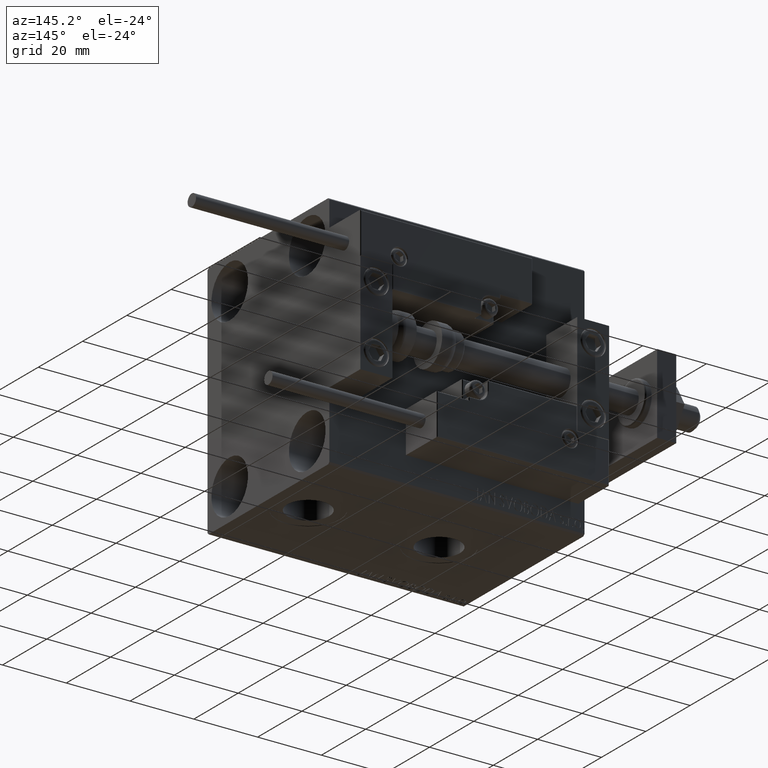
[diagram: clean part render]
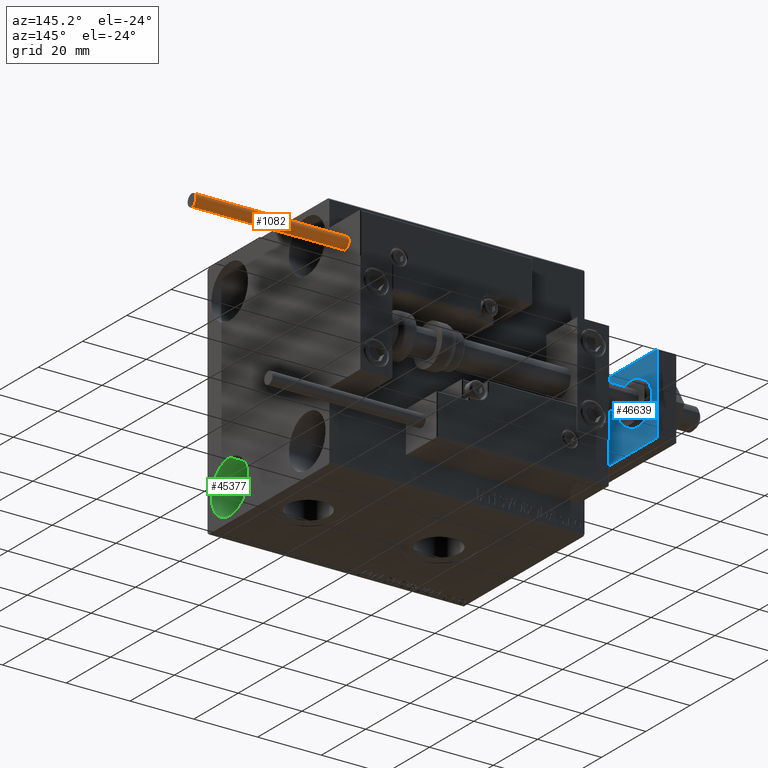
[diagram: same view with three faces highlighted in distinct colors, each labeled with its STEP entity id]
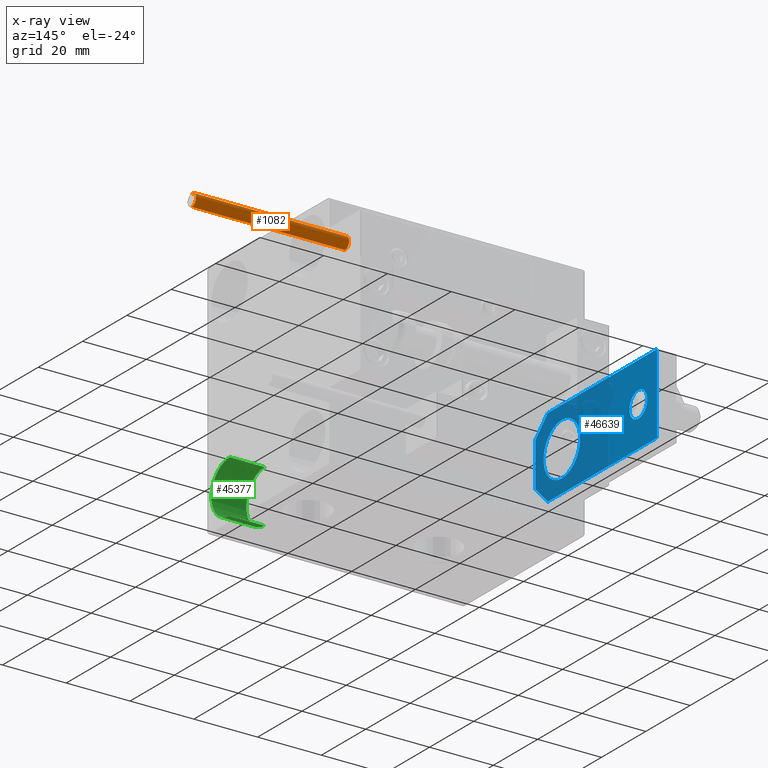
[diagram: x-ray of the same camera — body ghosted, the three highlighted faces saturated]
A machine part, auxiliary view with three faces highlighted in distinct colors.
The next image is the same camera in x-ray (body ghosted, the three faces saturated) — at least one of them is partly hidden behind the body in this view.
Their STEP definitions:

[orange] entity #1082 — the highlighted cylindrical surface (edge-blend (fillet) strip) has radius 1.9 mm, axis along (-1, -0, 0).
#40 = DIRECTION ( 'NONE',  ( -0.000000000000000000, -0.000000000000000000, -1.000000000000000000 ) ) ;
#540 = CYLINDRICAL_SURFACE ( 'NONE', #27054, 1.899999999999999467 ) ;
#699 = CARTESIAN_POINT ( 'NONE',  ( -1.899999999999999467, 0.000000000000000000, 0.000000000000000000 ) ) ;
#1082 = ADVANCED_FACE ( 'NONE', ( #11248 ), #540, .T. ) ;
#1273 = VECTOR ( 'NONE', #26378, 1000.000000000000000 ) ;
#1294 = AXIS2_PLACEMENT_3D ( 'NONE', #19311, #15729, #23638 ) ;
#2304 = ORIENTED_EDGE ( 'NONE', *, *, #8899, .T. ) ;
#2812 = DIRECTION ( 'NONE',  ( 1.000000000000000000, 0.000000000000000000, 0.000000000000000000 ) ) ;
#3156 = VERTEX_POINT ( 'NONE', #699 ) ;
#3565 = DIRECTION ( 'NONE',  ( 0.000000000000000000, 0.000000000000000000, 1.000000000000000000 ) ) ;
#3663 = CARTESIAN_POINT ( 'NONE',  ( 1.899999999999999467, 2.326828918379970872E-16, 48.00000000000000000 ) ) ;
#3806 = ORIENTED_EDGE ( 'NONE', *, *, #48277, .T. ) ;
#4733 = DIRECTION ( 'NONE',  ( -0.000000000000000000, -0.000000000000000000, -1.000000000000000000 ) ) ;
#6991 = CIRCLE ( 'NONE', #1294, 1.899999999999999467 ) ;
#8899 = EDGE_CURVE ( 'NONE', #31305, #33926, #13895, .T. ) ;
#11248 = FACE_OUTER_BOUND ( 'NONE', #18096, .T. ) ;
#13895 = LINE ( 'NONE', #22316, #1273 ) ;
#15015 = CARTESIAN_POINT ( 'NONE',  ( -1.899999999999999467, 0.000000000000000000, 48.00000000000000000 ) ) ;
#15729 = DIRECTION ( 'NONE',  ( 0.000000000000000000, 0.000000000000000000, 1.000000000000000000 ) ) ;
#16053 = EDGE_CURVE ( 'NONE', #31305, #38540, #43208, .T. ) ;
#16219 = CARTESIAN_POINT ( 'NONE',  ( -1.899999999999999467, 0.000000000000000000, 48.00000000000000000 ) ) ;
#18096 = EDGE_LOOP ( 'NONE', ( #36208, #2304, #3806, #39537 ) ) ;
#18890 = DIRECTION ( 'NONE',  ( -1.000000000000000000, 0.000000000000000000, 0.000000000000000000 ) ) ;
#19311 = CARTESIAN_POINT ( 'NONE',  ( 0.000000000000000000, 0.000000000000000000, 0.000000000000000000 ) ) ;
#20883 = VECTOR ( 'NONE', #4733, 1000.000000000000000 ) ;
#21261 = AXIS2_PLACEMENT_3D ( 'NONE', #37690, #3565, #2812 ) ;
#22316 = CARTESIAN_POINT ( 'NONE',  ( 1.899999999999999467, 2.326828918379970872E-16, 48.00000000000000000 ) ) ;
#23638 = DIRECTION ( 'NONE',  ( 1.000000000000000000, 0.000000000000000000, 0.000000000000000000 ) ) ;
#26378 = DIRECTION ( 'NONE',  ( -0.000000000000000000, -0.000000000000000000, -1.000000000000000000 ) ) ;
#26532 = CARTESIAN_POINT ( 'NONE',  ( 0.000000000000000000, 0.000000000000000000, 48.00000000000000000 ) ) ;
#27054 = AXIS2_PLACEMENT_3D ( 'NONE', #26532, #40, #18890 ) ;
#31305 = VERTEX_POINT ( 'NONE', #3663 ) ;
#33754 = EDGE_CURVE ( 'NONE', #38540, #3156, #39622, .T. ) ;
#33926 = VERTEX_POINT ( 'NONE', #37545 ) ;
#36208 = ORIENTED_EDGE ( 'NONE', *, *, #16053, .F. ) ;
#37545 = CARTESIAN_POINT ( 'NONE',  ( 1.899999999999999467, 2.326828918379970872E-16, 0.000000000000000000 ) ) ;
#37690 = CARTESIAN_POINT ( 'NONE',  ( 0.000000000000000000, 0.000000000000000000, 48.00000000000000000 ) ) ;
#38540 = VERTEX_POINT ( 'NONE', #15015 ) ;
#39537 = ORIENTED_EDGE ( 'NONE', *, *, #33754, .F. ) ;
#39622 = LINE ( 'NONE', #16219, #20883 ) ;
#43208 = CIRCLE ( 'NONE', #21261, 1.899999999999999467 ) ;
#48277 = EDGE_CURVE ( 'NONE', #33926, #3156, #6991, .T. ) ;

[blue] entity #46639 — the highlighted planar face has unit normal (-1, 0, 0).
#905 = DIRECTION ( 'NONE',  ( 0.000000000000000000, 0.000000000000000000, 1.000000000000000000 ) ) ;
#1201 = VERTEX_POINT ( 'NONE', #50179 ) ;
#1612 = LINE ( 'NONE', #17139, #42018 ) ;
#2144 = EDGE_CURVE ( 'NONE', #47420, #10981, #23870, .T. ) ;
#2354 = CARTESIAN_POINT ( 'NONE',  ( 12.50000000000000355, 5.659999999999991260, 0.000000000000000000 ) ) ;
#2991 = EDGE_CURVE ( 'NONE', #3270, #10981, #39150, .T. ) ;
#3270 = VERTEX_POINT ( 'NONE', #44952 ) ;
#3877 = CARTESIAN_POINT ( 'NONE',  ( -6.840000000000012292, 4.814824860968089633E-32, 0.000000000000000000 ) ) ;
#4507 = AXIS2_PLACEMENT_3D ( 'NONE', #20641, #44048, #29030 ) ;
#6232 = CARTESIAN_POINT ( 'NONE',  ( 8.250000000000000000, 11.99999999999999822, 0.000000000000000000 ) ) ;
#6318 = VERTEX_POINT ( 'NONE', #7425 ) ;
#7425 = CARTESIAN_POINT ( 'NONE',  ( 4.000000000000000888, 46.50000000000000000, 0.000000000000000000 ) ) ;
#7743 = CARTESIAN_POINT ( 'NONE',  ( 12.50000000000000000, 55.00000000000000000, 0.000000000000000000 ) ) ;
#8950 = ORIENTED_EDGE ( 'NONE', *, *, #11895, .T. ) ;
#10044 = VERTEX_POINT ( 'NONE', #26836 ) ;
#10151 = VECTOR ( 'NONE', #35297, 1000.000000000000000 ) ;
#10362 = AXIS2_PLACEMENT_3D ( 'NONE', #18101, #26003, #26243 ) ;
#10462 = EDGE_CURVE ( 'NONE', #1201, #43120, #22408, .T. ) ;
#10981 = VERTEX_POINT ( 'NONE', #16073 ) ;
#11144 = CARTESIAN_POINT ( 'NONE',  ( -12.49999999999999822, 55.00000000000000000, 0.000000000000000000 ) ) ;
#11178 = FACE_BOUND ( 'NONE', #40268, .T. ) ;
#11600 = DIRECTION ( 'NONE',  ( 1.000000000000000000, 0.000000000000000000, 0.000000000000000000 ) ) ;
#11679 = CARTESIAN_POINT ( 'NONE',  ( 0.000000000000000000, 0.000000000000000000, 0.000000000000000000 ) ) ;
#11895 = EDGE_CURVE ( 'NONE', #6318, #29539, #46813, .T. ) ;
#12926 = LINE ( 'NONE', #27971, #26505 ) ;
#12936 = EDGE_CURVE ( 'NONE', #42466, #10044, #12926, .T. ) ;
#13753 = EDGE_CURVE ( 'NONE', #29539, #6318, #15296, .T. ) ;
#14239 = AXIS2_PLACEMENT_3D ( 'NONE', #35781, #905, #16441 ) ;
#14879 = VECTOR ( 'NONE', #39635, 1000.000000000000000 ) ;
#15296 = CIRCLE ( 'NONE', #37239, 4.000000000000000888 ) ;
#16073 = CARTESIAN_POINT ( 'NONE',  ( -12.50000000000000355, 5.660000000000005471, 0.000000000000000000 ) ) ;
#16441 = DIRECTION ( 'NONE',  ( 1.000000000000000000, 0.000000000000000000, 0.000000000000000000 ) ) ;
#16545 = VECTOR ( 'NONE', #31258, 1000.000000000000000 ) ;
#16696 = CARTESIAN_POINT ( 'NONE',  ( -12.50000000000000355, 4.814824860968089633E-32, 0.000000000000000000 ) ) ;
#17139 = CARTESIAN_POINT ( 'NONE',  ( 12.50000000000000000, 55.00000000000000000, 0.000000000000000000 ) ) ;
#18101 = CARTESIAN_POINT ( 'NONE',  ( -9.629649721936179265E-32, 11.99999999999999645, 0.000000000000000000 ) ) ;
#18150 = ORIENTED_EDGE ( 'NONE', *, *, #46044, .F. ) ;
#19085 = FACE_OUTER_BOUND ( 'NONE', #36926, .T. ) ;
#20641 = CARTESIAN_POINT ( 'NONE',  ( -1.432611055310774642E-16, 46.50000000000000000, 0.000000000000000000 ) ) ;
#22394 = AXIS2_PLACEMENT_3D ( 'NONE', #11679, #46311, #45800 ) ;
#22408 = CIRCLE ( 'NONE', #14239, 8.250000000000000000 ) ;
#23870 = LINE ( 'NONE', #43450, #14879 ) ;
#24604 = VERTEX_POINT ( 'NONE', #7743 ) ;
#25293 = DIRECTION ( 'NONE',  ( -1.000000000000000000, 0.000000000000000000, 0.000000000000000000 ) ) ;
#25843 = ORIENTED_EDGE ( 'NONE', *, *, #2144, .T. ) ;
#26003 = DIRECTION ( 'NONE',  ( 0.000000000000000000, 0.000000000000000000, 1.000000000000000000 ) ) ;
#26111 = CARTESIAN_POINT ( 'NONE',  ( 12.50000000000000355, 4.814824860968089633E-32, 0.000000000000000000 ) ) ;
#26243 = DIRECTION ( 'NONE',  ( 1.000000000000000000, 0.000000000000000000, 0.000000000000000000 ) ) ;
#26505 = VECTOR ( 'NONE', #43500, 1000.000000000000114 ) ;
#26836 = CARTESIAN_POINT ( 'NONE',  ( 6.839999999999998970, 4.814824860968089633E-32, 0.000000000000000000 ) ) ;
#26918 = CARTESIAN_POINT ( 'NONE',  ( -4.000000000000000888, 46.50000000000000000, 0.000000000000000000 ) ) ;
#27971 = CARTESIAN_POINT ( 'NONE',  ( 12.50000000000000355, 5.659999999999991260, 0.000000000000000000 ) ) ;
#29030 = DIRECTION ( 'NONE',  ( 1.000000000000000000, 0.000000000000000000, 0.000000000000000000 ) ) ;
#29539 = VERTEX_POINT ( 'NONE', #26918 ) ;
#29807 = EDGE_CURVE ( 'NONE', #42466, #24604, #30180, .T. ) ;
#30180 = LINE ( 'NONE', #26111, #36158 ) ;
#30283 = FACE_BOUND ( 'NONE', #47972, .T. ) ;
#30928 = ORIENTED_EDGE ( 'NONE', *, *, #10462, .T. ) ;
#31258 = DIRECTION ( 'NONE',  ( -9.462128050782584375E-17, -1.000000000000000000, 0.000000000000000000 ) ) ;
#33267 = ORIENTED_EDGE ( 'NONE', *, *, #29807, .F. ) ;
#34202 = EDGE_CURVE ( 'NONE', #24604, #3270, #1612, .T. ) ;
#35297 = DIRECTION ( 'NONE',  ( 1.000000000000000000, 0.000000000000000000, 0.000000000000000000 ) ) ;
#35781 = CARTESIAN_POINT ( 'NONE',  ( -9.629649721936179265E-32, 11.99999999999999645, 0.000000000000000000 ) ) ;
#36158 = VECTOR ( 'NONE', #37806, 1000.000000000000000 ) ;
#36926 = EDGE_LOOP ( 'NONE', ( #18150, #25843, #38541, #37026, #33267, #39857 ) ) ;
#37026 = ORIENTED_EDGE ( 'NONE', *, *, #34202, .F. ) ;
#37239 = AXIS2_PLACEMENT_3D ( 'NONE', #38335, #38088, #11600 ) ;
#37806 = DIRECTION ( 'NONE',  ( -6.308085367188389994E-17, 1.000000000000000000, 0.000000000000000000 ) ) ;
#38088 = DIRECTION ( 'NONE',  ( 0.000000000000000000, 0.000000000000000000, 1.000000000000000000 ) ) ;
#38335 = CARTESIAN_POINT ( 'NONE',  ( -1.432611055310774642E-16, 46.50000000000000000, 0.000000000000000000 ) ) ;
#38541 = ORIENTED_EDGE ( 'NONE', *, *, #2991, .F. ) ;
#39150 = LINE ( 'NONE', #11144, #16545 ) ;
#39570 = EDGE_CURVE ( 'NONE', #43120, #1201, #41252, .T. ) ;
#39635 = DIRECTION ( 'NONE',  ( -0.7071067811865467956, 0.7071067811865483499, -0.000000000000000000 ) ) ;
#39857 = ORIENTED_EDGE ( 'NONE', *, *, #12936, .T. ) ;
#40268 = EDGE_LOOP ( 'NONE', ( #48915, #8950 ) ) ;
#40804 = ORIENTED_EDGE ( 'NONE', *, *, #39570, .T. ) ;
#41252 = CIRCLE ( 'NONE', #10362, 8.250000000000000000 ) ;
#42018 = VECTOR ( 'NONE', #25293, 1000.000000000000000 ) ;
#42466 = VERTEX_POINT ( 'NONE', #2354 ) ;
#42948 = LINE ( 'NONE', #16696, #10151 ) ;
#43120 = VERTEX_POINT ( 'NONE', #6232 ) ;
#43450 = CARTESIAN_POINT ( 'NONE',  ( -6.840000000000012292, 4.814824860968089633E-32, 0.000000000000000000 ) ) ;
#43500 = DIRECTION ( 'NONE',  ( -0.7071067811865483499, -0.7071067811865465735, -0.000000000000000000 ) ) ;
#44048 = DIRECTION ( 'NONE',  ( 0.000000000000000000, 0.000000000000000000, 1.000000000000000000 ) ) ;
#44952 = CARTESIAN_POINT ( 'NONE',  ( -12.49999999999999822, 55.00000000000000000, 0.000000000000000000 ) ) ;
#45800 = DIRECTION ( 'NONE',  ( 1.000000000000000000, 0.000000000000000000, 0.000000000000000000 ) ) ;
#46044 = EDGE_CURVE ( 'NONE', #47420, #10044, #42948, .T. ) ;
#46311 = DIRECTION ( 'NONE',  ( -0.000000000000000000, 0.000000000000000000, 1.000000000000000000 ) ) ;
#46556 = PLANE ( 'NONE',  #22394 ) ;
#46639 = ADVANCED_FACE ( 'NONE', ( #19085, #11178, #30283 ), #46556, .F. ) ;
#46813 = CIRCLE ( 'NONE', #4507, 4.000000000000000888 ) ;
#47420 = VERTEX_POINT ( 'NONE', #3877 ) ;
#47972 = EDGE_LOOP ( 'NONE', ( #30928, #40804 ) ) ;
#48915 = ORIENTED_EDGE ( 'NONE', *, *, #13753, .T. ) ;
#50179 = CARTESIAN_POINT ( 'NONE',  ( -8.250000000000000000, 11.99999999999999645, 0.000000000000000000 ) ) ;

[green] entity #45377 — the highlighted cylindrical surface (edge-blend (fillet) strip) has radius 8.25 mm, axis along (1, 0, 0).
#622 = EDGE_CURVE ( 'NONE', #26761, #2992, #45789, .T. ) ;
#2435 = CARTESIAN_POINT ( 'NONE',  ( 80.00000000000000000, -17.50000000000000355, -19.25000000000000355 ) ) ;
#2992 = VERTEX_POINT ( 'NONE', #23131 ) ;
#5316 = CARTESIAN_POINT ( 'NONE',  ( 69.00000000000000000, -17.50000000000000355, -35.75000000000000711 ) ) ;
#5883 = FACE_OUTER_BOUND ( 'NONE', #48022, .T. ) ;
#8447 = DIRECTION ( 'NONE',  ( 0.000000000000000000, 0.000000000000000000, 1.000000000000000000 ) ) ;
#10188 = EDGE_CURVE ( 'NONE', #26761, #24577, #19097, .T. ) ;
#10724 = DIRECTION ( 'NONE',  ( 0.000000000000000000, 0.000000000000000000, -1.000000000000000000 ) ) ;
#12583 = DIRECTION ( 'NONE',  ( -1.000000000000000000, -0.000000000000000000, -0.000000000000000000 ) ) ;
#14013 = ORIENTED_EDGE ( 'NONE', *, *, #41874, .T. ) ;
#16158 = VECTOR ( 'NONE', #18014, 1000.000000000000000 ) ;
#16452 = VECTOR ( 'NONE', #30273, 1000.000000000000000 ) ;
#17878 = CARTESIAN_POINT ( 'NONE',  ( 69.00000000000000000, -17.50000000000000355, -27.50000000000000355 ) ) ;
#18014 = DIRECTION ( 'NONE',  ( 1.000000000000000000, -0.000000000000000000, -0.000000000000000000 ) ) ;
#18390 = CYLINDRICAL_SURFACE ( 'NONE', #23992, 8.250000000000000000 ) ;
#18526 = LINE ( 'NONE', #21587, #16158 ) ;
#18817 = CARTESIAN_POINT ( 'NONE',  ( 69.00000000000000000, -17.50000000000000355, -35.75000000000000711 ) ) ;
#19097 = CIRCLE ( 'NONE', #26428, 8.250000000000000000 ) ;
#21587 = CARTESIAN_POINT ( 'NONE',  ( 69.00000000000000000, -17.50000000000000355, -19.25000000000000355 ) ) ;
#23131 = CARTESIAN_POINT ( 'NONE',  ( 80.00000000000000000, -17.50000000000000355, -35.75000000000000711 ) ) ;
#23992 = AXIS2_PLACEMENT_3D ( 'NONE', #17878, #45360, #10724 ) ;
#24263 = DIRECTION ( 'NONE',  ( -1.000000000000000000, -0.000000000000000000, -0.000000000000000000 ) ) ;
#24577 = VERTEX_POINT ( 'NONE', #31189 ) ;
#25086 = VERTEX_POINT ( 'NONE', #2435 ) ;
#25532 = ORIENTED_EDGE ( 'NONE', *, *, #622, .F. ) ;
#26428 = AXIS2_PLACEMENT_3D ( 'NONE', #43349, #24263, #8447 ) ;
#26761 = VERTEX_POINT ( 'NONE', #5316 ) ;
#28191 = CIRCLE ( 'NONE', #46070, 8.250000000000000000 ) ;
#29134 = DIRECTION ( 'NONE',  ( 0.000000000000000000, 0.000000000000000000, 1.000000000000000000 ) ) ;
#30273 = DIRECTION ( 'NONE',  ( 1.000000000000000000, -0.000000000000000000, -0.000000000000000000 ) ) ;
#31189 = CARTESIAN_POINT ( 'NONE',  ( 69.00000000000000000, -17.50000000000000355, -19.25000000000000355 ) ) ;
#32122 = ORIENTED_EDGE ( 'NONE', *, *, #10188, .T. ) ;
#39486 = ORIENTED_EDGE ( 'NONE', *, *, #49385, .F. ) ;
#41874 = EDGE_CURVE ( 'NONE', #24577, #25086, #18526, .T. ) ;
#43349 = CARTESIAN_POINT ( 'NONE',  ( 69.00000000000000000, -17.50000000000000355, -27.50000000000000355 ) ) ;
#45360 = DIRECTION ( 'NONE',  ( 1.000000000000000000, -0.000000000000000000, -0.000000000000000000 ) ) ;
#45377 = ADVANCED_FACE ( 'NONE', ( #5883 ), #18390, .F. ) ;
#45789 = LINE ( 'NONE', #18817, #16452 ) ;
#46070 = AXIS2_PLACEMENT_3D ( 'NONE', #47963, #12583, #29134 ) ;
#47963 = CARTESIAN_POINT ( 'NONE',  ( 80.00000000000000000, -17.50000000000000355, -27.50000000000000355 ) ) ;
#48022 = EDGE_LOOP ( 'NONE', ( #32122, #14013, #39486, #25532 ) ) ;
#49385 = EDGE_CURVE ( 'NONE', #2992, #25086, #28191, .T. ) ;